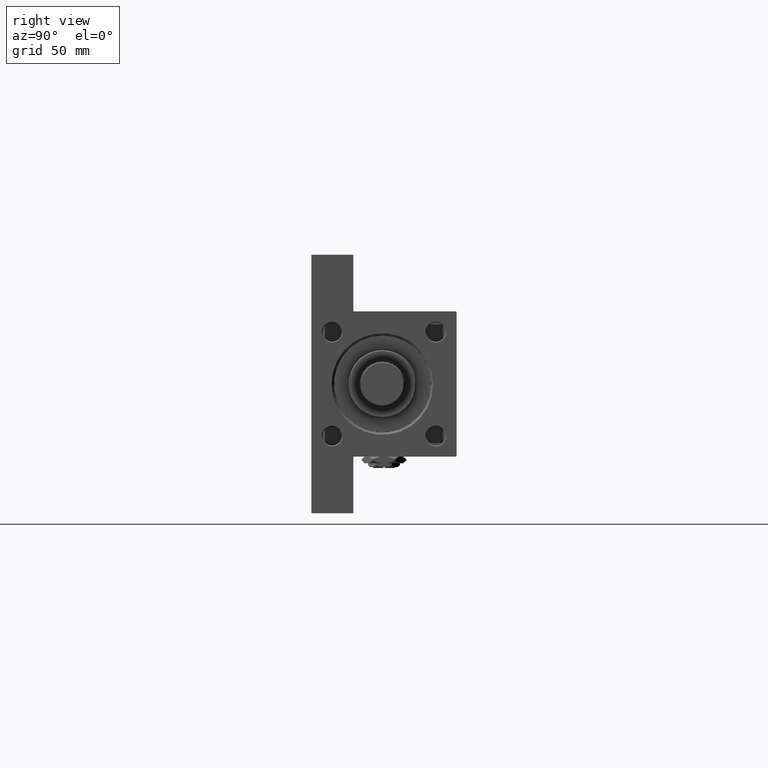
[diagram: clean part render]
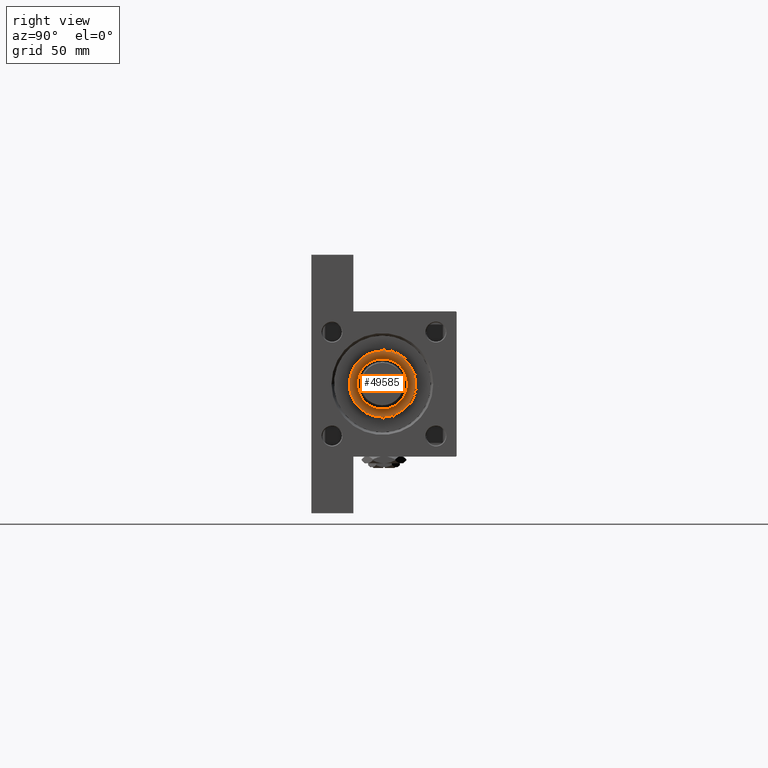
[diagram: same view with one face highlighted and labeled with its STEP entity id]
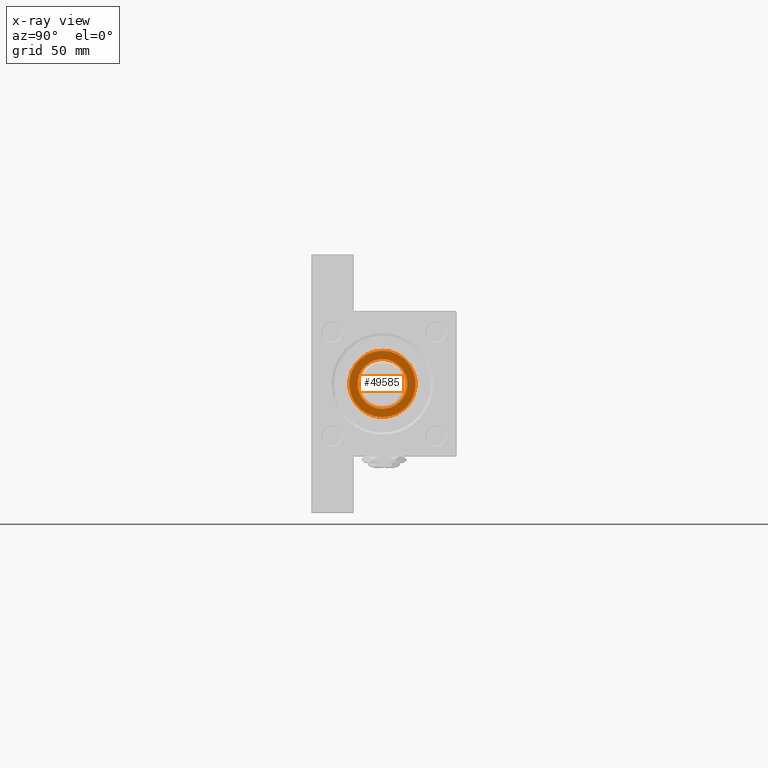
[diagram: x-ray of the same camera — body ghosted, the highlighted face saturated]
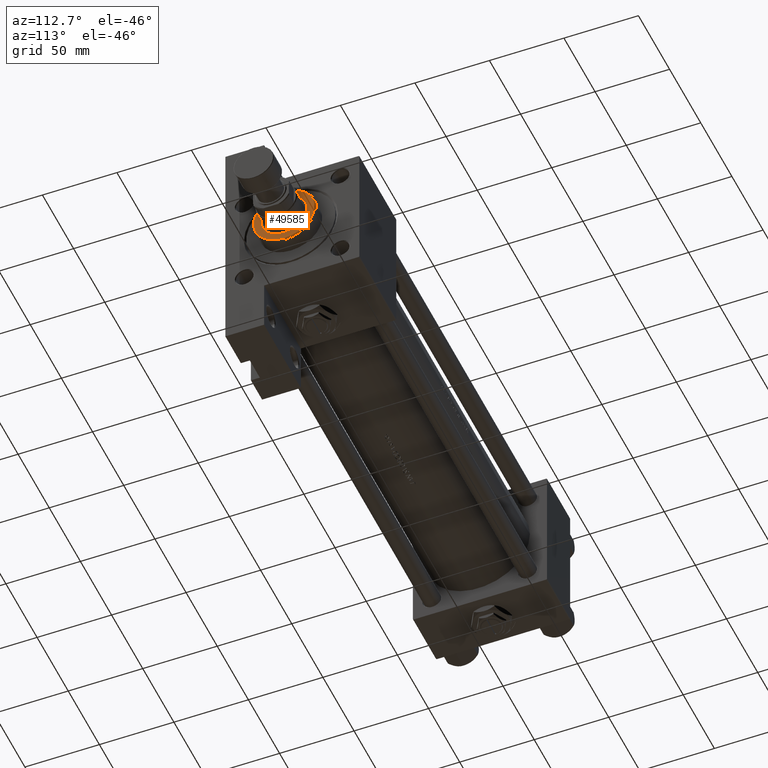
[diagram: same view with one face highlighted and labeled with its STEP entity id]
A machine part, right view. The second image highlights one B-rep face of the part: STEP entity #49585.
The next image is the same camera in x-ray: the body ghosted, the highlighted face saturated — about 0% of this face is hidden behind the body in this view.
A second angle (auxiliary view) of the same face is appended — the face is thin or edge-on in the first view.
In plain terms, the highlighted planar face has unit normal (1, 0, 0).
Its self-contained STEP definition (entity closure, byte-faithful):
#2477 = EDGE_CURVE ( 'NONE', #11246, #38610, #48432, .T. ) ;
#2938 = VERTEX_POINT ( 'NONE', #36804 ) ;
#3102 = DIRECTION ( 'NONE',  ( 1.000000000000000000, 0.000000000000000000, 0.000000000000000000 ) ) ;
#4823 = FACE_BOUND ( 'NONE', #36968, .T. ) ;
#8849 = AXIS2_PLACEMENT_3D ( 'NONE', #26188, #30256, #3102 ) ;
#9197 = ORIENTED_EDGE ( 'NONE', *, *, #20332, .T. ) ;
#11246 = VERTEX_POINT ( 'NONE', #40027 ) ;
#11963 = EDGE_LOOP ( 'NONE', ( #24785, #9197 ) ) ;
#14503 = AXIS2_PLACEMENT_3D ( 'NONE', #25759, #21949, #28132 ) ;
#19073 = EDGE_CURVE ( 'NONE', #47596, #2938, #44636, .T. ) ;
#19379 = CIRCLE ( 'NONE', #8849, 20.50000000000000355 ) ;
#19590 = CARTESIAN_POINT ( 'NONE',  ( 0.000000000000000000, 0.000000000000000000, 39.69999999999999574 ) ) ;
#20332 = EDGE_CURVE ( 'NONE', #38610, #11246, #19379, .T. ) ;
#20785 = FACE_OUTER_BOUND ( 'NONE', #11963, .T. ) ;
#21949 = DIRECTION ( 'NONE',  ( 0.000000000000000000, 0.000000000000000000, 1.000000000000000000 ) ) ;
#24507 = ORIENTED_EDGE ( 'NONE', *, *, #19073, .F. ) ;
#24531 = CARTESIAN_POINT ( 'NONE',  ( 15.50000000000000000, 0.000000000000000000, 39.69999999999999574 ) ) ;
#24785 = ORIENTED_EDGE ( 'NONE', *, *, #2477, .T. ) ;
#25204 = AXIS2_PLACEMENT_3D ( 'NONE', #19590, #31034, #46520 ) ;
#25759 = CARTESIAN_POINT ( 'NONE',  ( 0.000000000000000000, 0.000000000000000000, 39.69999999999999574 ) ) ;
#26188 = CARTESIAN_POINT ( 'NONE',  ( 0.000000000000000000, 0.000000000000000000, 39.69999999999999574 ) ) ;
#27675 = DIRECTION ( 'NONE',  ( 0.000000000000000000, 0.000000000000000000, 1.000000000000000000 ) ) ;
#28132 = DIRECTION ( 'NONE',  ( 1.000000000000000000, 0.000000000000000000, 0.000000000000000000 ) ) ;
#28671 = CARTESIAN_POINT ( 'NONE',  ( 0.000000000000000000, 0.000000000000000000, 39.69999999999999574 ) ) ;
#30024 = DIRECTION ( 'NONE',  ( 1.000000000000000000, 0.000000000000000000, 0.000000000000000000 ) ) ;
#30080 = CARTESIAN_POINT ( 'NONE',  ( 20.50000000000000355, 2.541142108230758269E-15, 39.69999999999999574 ) ) ;
#30256 = DIRECTION ( 'NONE',  ( 0.000000000000000000, 0.000000000000000000, 1.000000000000000000 ) ) ;
#31034 = DIRECTION ( 'NONE',  ( 0.000000000000000000, 0.000000000000000000, 1.000000000000000000 ) ) ;
#32478 = PLANE ( 'NONE',  #40691 ) ;
#33069 = CARTESIAN_POINT ( 'NONE',  ( 0.000000000000000000, 0.000000000000000000, 39.69999999999999574 ) ) ;
#36262 = AXIS2_PLACEMENT_3D ( 'NONE', #33069, #45518, #30024 ) ;
#36804 = CARTESIAN_POINT ( 'NONE',  ( -15.50000000000000000, 1.898202538678397557E-15, 39.69999999999999574 ) ) ;
#36968 = EDGE_LOOP ( 'NONE', ( #24507, #40986 ) ) ;
#38610 = VERTEX_POINT ( 'NONE', #30080 ) ;
#40027 = CARTESIAN_POINT ( 'NONE',  ( -20.50000000000000355, 0.000000000000000000, 39.69999999999999574 ) ) ;
#40691 = AXIS2_PLACEMENT_3D ( 'NONE', #28671, #27675, #46964 ) ;
#40986 = ORIENTED_EDGE ( 'NONE', *, *, #48038, .F. ) ;
#44636 = CIRCLE ( 'NONE', #14503, 15.50000000000000000 ) ;
#45518 = DIRECTION ( 'NONE',  ( 0.000000000000000000, 0.000000000000000000, 1.000000000000000000 ) ) ;
#46520 = DIRECTION ( 'NONE',  ( 1.000000000000000000, 0.000000000000000000, 0.000000000000000000 ) ) ;
#46964 = DIRECTION ( 'NONE',  ( 1.000000000000000000, 0.000000000000000000, -0.000000000000000000 ) ) ;
#47118 = CIRCLE ( 'NONE', #25204, 15.50000000000000000 ) ;
#47596 = VERTEX_POINT ( 'NONE', #24531 ) ;
#48038 = EDGE_CURVE ( 'NONE', #2938, #47596, #47118, .T. ) ;
#48432 = CIRCLE ( 'NONE', #36262, 20.50000000000000355 ) ;
#49585 = ADVANCED_FACE ( 'NONE', ( #4823, #20785 ), #32478, .T. ) ;